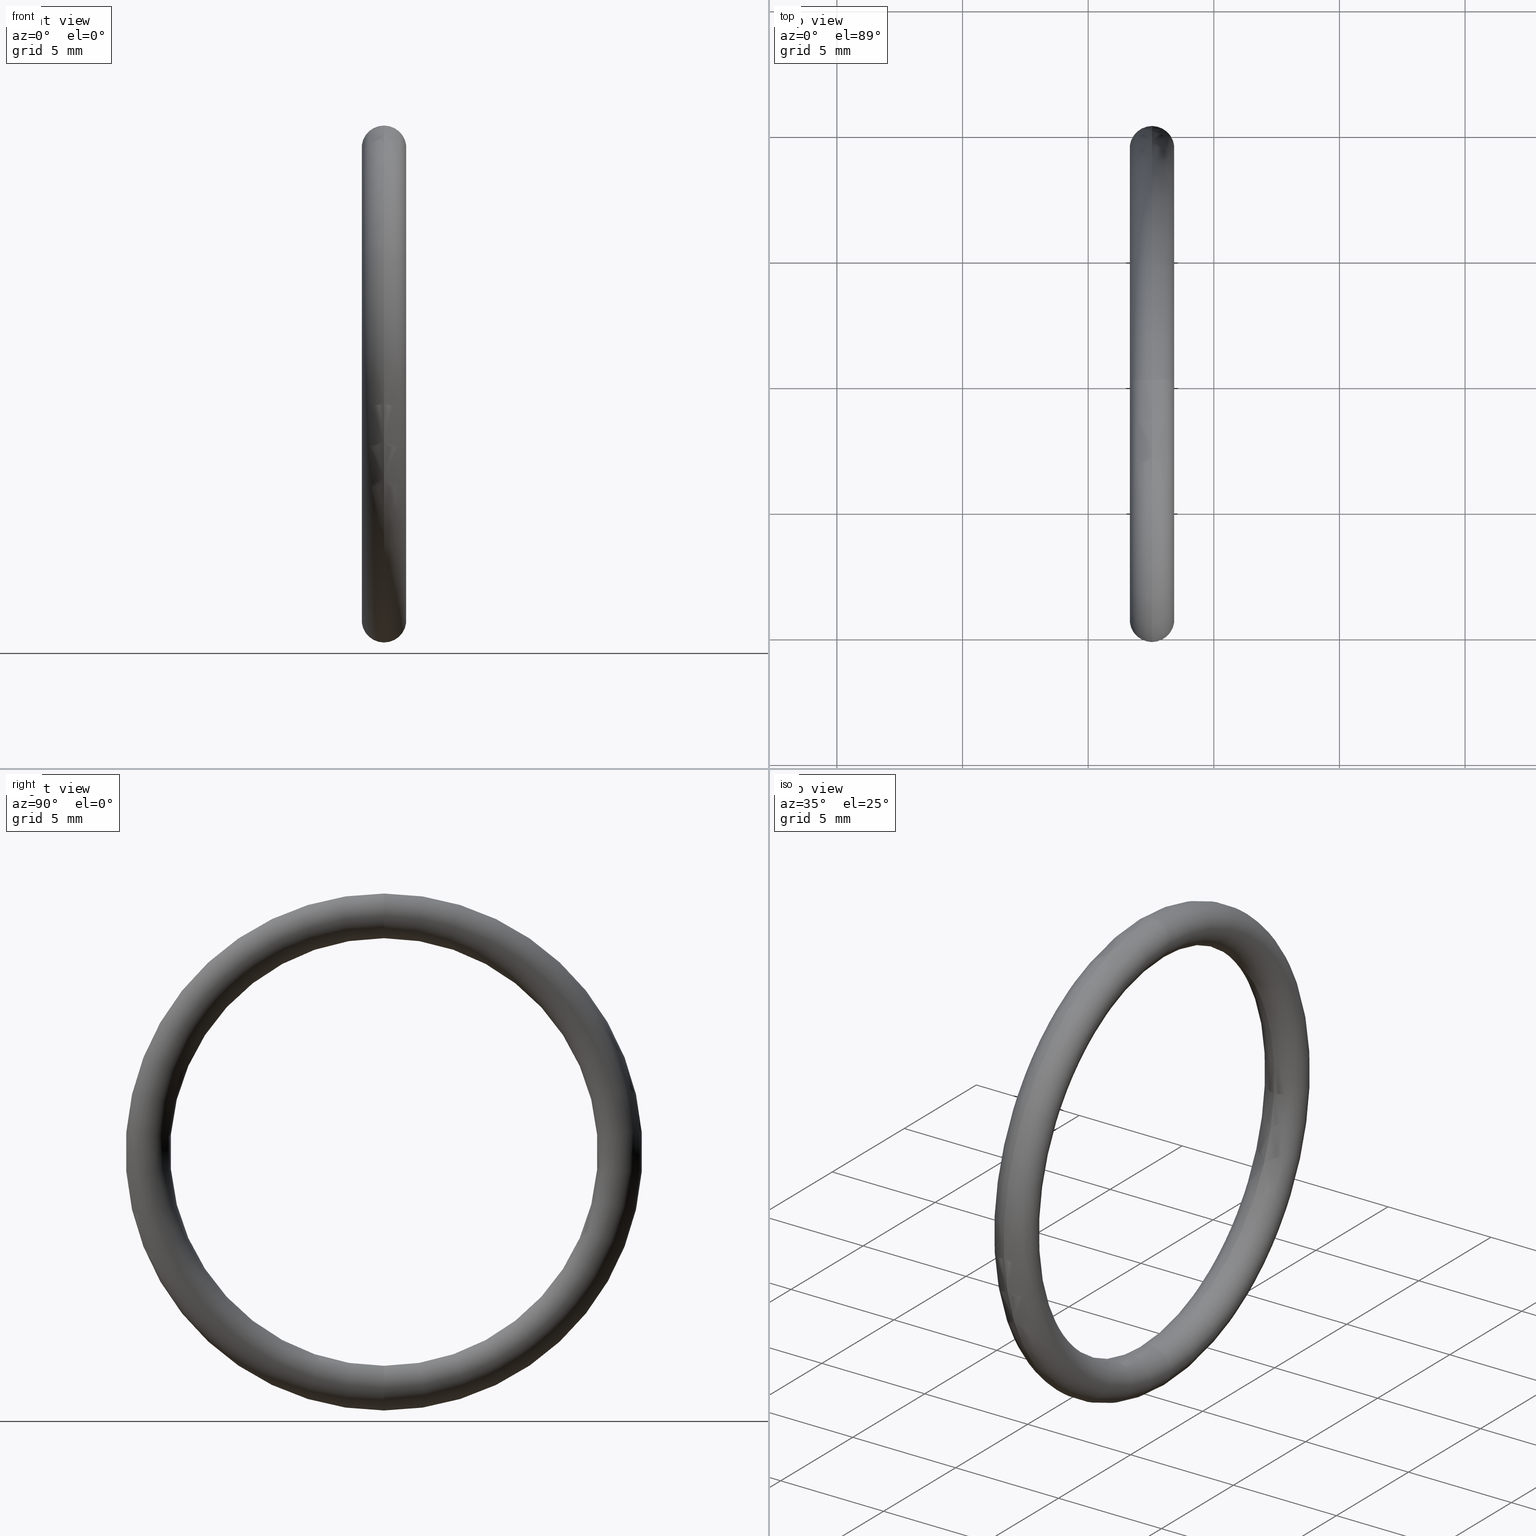
[diagram: canonical four-view strip — front | top / right | iso, engineering-drawing reading convention]
A machine part, canonical four-view strip (front | top / right | iso — engineering-drawing reading convention). The complete STEP part file that produces these views, byte-faithful:
ISO-10303-21;
HEADER;
FILE_DESCRIPTION (( 'STEP AP203' ),
    '1' );
FILE_NAME ('OM-20-VT.STEP',
    '2008-06-24T09:45:37',
    ( 'BSI05' ),
    ( 'BAYSTATE' ),
    'SwSTEP 2.0',
    'SolidWorks 2007',
    '' );
FILE_SCHEMA (( 'CONFIG_CONTROL_DESIGN' ));
ENDSEC;

DATA;
#1 = APPROVAL ( #2, 'UNSPECIFIED' ) ;
#2 = APPROVAL_STATUS ( 'not_yet_approved' ) ;
#3 = PERSON_AND_ORGANIZATION ( #80, #11 ) ;
#4 = PRODUCT_DEFINITION ( 'UNKNOWN', '', #37, #5 ) ;
#5 = DESIGN_CONTEXT ( 'detailed design', #7, 'design' ) ;
#6 = APPLICATION_PROTOCOL_DEFINITION ( 'international standard', 'config_control_design', 1994, #7 ) ;
#7 = APPLICATION_CONTEXT ( 'configuration controlled 3d designs of mechanical parts and assemblies' ) ;
#8 = CC_DESIGN_PERSON_AND_ORGANIZATION_ASSIGNMENT ( #10, #9, ( #81 ) ) ;
#9 = PERSON_AND_ORGANIZATION_ROLE ( 'design_owner' ) ;
#10 = PERSON_AND_ORGANIZATION ( #80, #11 ) ;
#11 = ORGANIZATION ( 'UNSPECIFIED', 'UNSPECIFIED', '' ) ;
#12 = CARTESIAN_POINT ( 'NONE',  ( 0.1000000000000000500, 0.0000000000000000000, 0.0000000000000000000 ) ) ;
#13 = DIRECTION ( 'NONE',  ( 0.0000000000000000000, -1.224646799147352500E-016, 1.000000000000000000 ) ) ;
#14 = DIRECTION ( 'NONE',  ( 0.0000000000000000000, 1.000000000000000000, 1.224646799147353200E-016 ) ) ;
#15 = CARTESIAN_POINT ( 'NONE',  ( 0.1000000000000000500, 4.531193156845207300E-017, -0.3700000000000000000 ) ) ;
#16 = AXIS2_PLACEMENT_3D ( 'NONE', #15, #14, #13 ) ;
#17 = FACE_OUTER_BOUND ( 'NONE', #119, .T. ) ;
#18 = UNCERTAINTY_MEASURE_WITH_UNIT (LENGTH_MEASURE( 1.000000000000000100E-005 ), #127, 'distance_accuracy_value', 'NONE');
#19 =( NAMED_UNIT ( * ) SI_UNIT ( $, .STERADIAN. ) SOLID_ANGLE_UNIT ( ) );
#20 = CC_DESIGN_PERSON_AND_ORGANIZATION_ASSIGNMENT ( #22, #21, ( #37 ) ) ;
#21 = PERSON_AND_ORGANIZATION_ROLE ( 'design_supplier' ) ;
#22 = PERSON_AND_ORGANIZATION ( #80, #11 ) ;
#23 = CC_DESIGN_PERSON_AND_ORGANIZATION_ASSIGNMENT ( #25, #24, ( #37 ) ) ;
#24 = PERSON_AND_ORGANIZATION_ROLE ( 'creator' ) ;
#25 = PERSON_AND_ORGANIZATION ( #80, #11 ) ;
#26 = CC_DESIGN_APPROVAL ( #34, ( #37 ) ) ;
#27 = APPROVAL_DATE_TIME ( #28, #34 ) ;
#28 = DATE_AND_TIME ( #29, #30 ) ;
#29 = CALENDAR_DATE ( 2008, 24, 6 ) ;
#30 = LOCAL_TIME ( 15, 15, 37.00000000000000000, #31 ) ;
#31 = COORDINATED_UNIVERSAL_TIME_OFFSET ( 5, 30, .AHEAD. ) ;
#32 = APPROVAL_PERSON_ORGANIZATION ( #36, #34, #33 ) ;
#33 = APPROVAL_ROLE ( '' ) ;
#34 = APPROVAL ( #35, 'UNSPECIFIED' ) ;
#35 = APPROVAL_STATUS ( 'not_yet_approved' ) ;
#36 = PERSON_AND_ORGANIZATION ( #80, #11 ) ;
#37 = PRODUCT_DEFINITION_FORMATION_WITH_SPECIFIED_SOURCE ( 'ANY', '', #81, .NOT_KNOWN. ) ;
#38 = CC_DESIGN_DATE_AND_TIME_ASSIGNMENT ( #40, #39, ( #4 ) ) ;
#39 = DATE_TIME_ROLE ( 'creation_date' ) ;
#40 = DATE_AND_TIME ( #41, #42 ) ;
#41 = CALENDAR_DATE ( 2008, 24, 6 ) ;
#42 = LOCAL_TIME ( 15, 15, 37.00000000000000000, #43 ) ;
#43 = COORDINATED_UNIVERSAL_TIME_OFFSET ( 5, 30, .AHEAD. ) ;
#44 = CC_DESIGN_PERSON_AND_ORGANIZATION_ASSIGNMENT ( #46, #45, ( #4 ) ) ;
#45 = PERSON_AND_ORGANIZATION_ROLE ( 'creator' ) ;
#46 = PERSON_AND_ORGANIZATION ( #80, #11 ) ;
#47 = CC_DESIGN_APPROVAL ( #1, ( #4 ) ) ;
#48 = APPROVAL_DATE_TIME ( #49, #1 ) ;
#49 = DATE_AND_TIME ( #50, #51 ) ;
#50 = CALENDAR_DATE ( 2008, 24, 6 ) ;
#51 = LOCAL_TIME ( 15, 15, 37.00000000000000000, #52 ) ;
#52 = COORDINATED_UNIVERSAL_TIME_OFFSET ( 5, 30, .AHEAD. ) ;
#53 = APPROVAL_PERSON_ORGANIZATION ( #3, #1, #54 ) ;
#54 = APPROVAL_ROLE ( '' ) ;
#55 = DIRECTION ( 'NONE',  ( 0.0000000000000000000, -1.224646799147352500E-016, 1.000000000000000000 ) ) ;
#56 = DIRECTION ( 'NONE',  ( 0.0000000000000000000, 1.000000000000000000, 1.224646799147353200E-016 ) ) ;
#57 = CARTESIAN_POINT ( 'NONE',  ( 0.1000000000000000500, 4.531193156845207300E-017, -0.3700000000000000000 ) ) ;
#58 = AXIS2_PLACEMENT_3D ( 'NONE', #57, #56, #55 ) ;
#59 = CIRCLE ( 'NONE', #58, 0.03500000000000003800 ) ;
#60 = CARTESIAN_POINT ( 'NONE',  ( 0.1000000000000000500, 0.0000000000000000000, 0.4050000000000000300 ) ) ;
#61 = DIRECTION ( 'NONE',  ( 0.0000000000000000000, 0.0000000000000000000, 1.000000000000000000 ) ) ;
#62 = DIRECTION ( 'NONE',  ( -1.000000000000000000, 0.0000000000000000000, 0.0000000000000000000 ) ) ;
#63 = CARTESIAN_POINT ( 'NONE',  ( 0.1000000000000000500, 0.0000000000000000000, 0.0000000000000000000 ) ) ;
#64 = CARTESIAN_POINT ( 'NONE',  ( 0.1000000000000000500, 0.0000000000000000000, 0.0000000000000000000 ) ) ;
#65 = AXIS2_PLACEMENT_3D ( 'NONE', #64, #78, #77 ) ;
#66 = CIRCLE ( 'NONE', #65, 0.4050000000000000300 ) ;
#67 = FACE_OUTER_BOUND ( 'NONE', #121, .T. ) ;
#68 = DIRECTION ( 'NONE',  ( 0.0000000000000000000, 0.0000000000000000000, -1.000000000000000000 ) ) ;
#69 = DIRECTION ( 'NONE',  ( 0.0000000000000000000, -1.000000000000000000, 0.0000000000000000000 ) ) ;
#70 = AXIS2_PLACEMENT_3D ( 'NONE', #145, #69, #68 ) ;
#71 = CIRCLE ( 'NONE', #70, 0.03500000000000003800 ) ;
#72 = CIRCLE ( 'NONE', #16, 0.03500000000000003800 ) ;
#73 = DIRECTION ( 'NONE',  ( 0.0000000000000000000, 0.0000000000000000000, 1.000000000000000000 ) ) ;
#74 = TOROIDAL_SURFACE ( 'NONE', #100, 0.3700000000000000000, 0.03500000000000000300 ) ;
#75 = FACE_OUTER_BOUND ( 'NONE', #85, .T. ) ;
#76 = CARTESIAN_POINT ( 'NONE',  ( 0.1000000000000000500, 0.0000000000000000000, 0.0000000000000000000 ) ) ;
#77 = DIRECTION ( 'NONE',  ( 0.0000000000000000000, 0.0000000000000000000, 1.000000000000000000 ) ) ;
#78 = DIRECTION ( 'NONE',  ( -1.000000000000000000, 0.0000000000000000000, 0.0000000000000000000 ) ) ;
#79 = CLOSED_SHELL ( 'NONE', ( #118, #178, #150, #131 ) ) ;
#80 = PERSON ( 'UNSPECIFIED', 'UNSPECIFIED', 'UNSPECIFIED', ('UNSPECIFIED'), ('UNSPECIFIED'), ('UNSPECIFIED') ) ;
#81 = PRODUCT ( 'OM-20-VT', 'OM-20-VT', '', ( #82 ) ) ;
#82 = MECHANICAL_CONTEXT ( 'NONE', #84, 'mechanical' ) ;
#83 = APPLICATION_PROTOCOL_DEFINITION ( 'international standard', 'config_control_design', 1994, #84 ) ;
#84 = APPLICATION_CONTEXT ( 'configuration controlled 3d designs of mechanical parts and assemblies' ) ;
#85 = EDGE_LOOP ( 'NONE', ( #151, #155, #182, #157 ) ) ;
#86 = ORIENTED_EDGE ( 'NONE', *, *, #122, .T. ) ;
#87 = DIRECTION ( 'NONE',  ( 0.0000000000000000000, 0.0000000000000000000, 1.000000000000000000 ) ) ;
#88 = DIRECTION ( 'NONE',  ( -1.000000000000000000, 0.0000000000000000000, 0.0000000000000000000 ) ) ;
#89 = AXIS2_PLACEMENT_3D ( 'NONE', #188, #88, #87 ) ;
#90 = TOROIDAL_SURFACE ( 'NONE', #89, 0.3700000000000000000, 0.03500000000000000300 ) ;
#91 = CARTESIAN_POINT ( 'NONE',  ( 0.1000000000000000500, 0.0000000000000000000, 0.3349999999999999600 ) ) ;
#92 = CARTESIAN_POINT ( 'NONE',  ( 0.1000000000000000500, 4.102566777143633400E-017, -0.3349999999999999600 ) ) ;
#93 = CARTESIAN_POINT ( 'NONE',  ( 0.1000000000000000500, 4.959819536546780600E-017, -0.4050000000000000300 ) ) ;
#94 = VERTEX_POINT ( 'NONE', #93 ) ;
#95 = VERTEX_POINT ( 'NONE', #92 ) ;
#96 = EDGE_CURVE ( 'NONE', #181, #120, #132, .T. ) ;
#97 = TOROIDAL_SURFACE ( 'NONE', #149, 0.3700000000000000000, 0.03500000000000000300 ) ;
#98 = DIRECTION ( 'NONE',  ( 0.0000000000000000000, 0.0000000000000000000, 1.000000000000000000 ) ) ;
#99 = DIRECTION ( 'NONE',  ( -1.000000000000000000, 0.0000000000000000000, 0.0000000000000000000 ) ) ;
#100 = AXIS2_PLACEMENT_3D ( 'NONE', #76, #99, #98 ) ;
#101 = PRODUCT_DEFINITION_SHAPE ( 'NONE', 'NONE',  #4 ) ;
#102 = PRODUCT_RELATED_PRODUCT_CATEGORY ( 'detail', '', ( #81 ) ) ;
#103 = CC_DESIGN_SECURITY_CLASSIFICATION ( #173, ( #37 ) ) ;
#104 = CC_DESIGN_APPROVAL ( #161, ( #173 ) ) ;
#105 = APPROVAL_DATE_TIME ( #106, #161 ) ;
#106 = DATE_AND_TIME ( #107, #108 ) ;
#107 = CALENDAR_DATE ( 2008, 24, 6 ) ;
#108 = LOCAL_TIME ( 15, 15, 37.00000000000000000, #109 ) ;
#109 = COORDINATED_UNIVERSAL_TIME_OFFSET ( 5, 30, .AHEAD. ) ;
#110 = DIRECTION ( 'NONE',  ( 0.0000000000000000000, 0.0000000000000000000, -1.000000000000000000 ) ) ;
#111 = DIRECTION ( 'NONE',  ( 0.0000000000000000000, -1.000000000000000000, 0.0000000000000000000 ) ) ;
#112 = CARTESIAN_POINT ( 'NONE',  ( 0.1000000000000000500, 0.0000000000000000000, 0.3700000000000000000 ) ) ;
#113 = AXIS2_PLACEMENT_3D ( 'NONE', #112, #111, #110 ) ;
#114 = ORIENTED_EDGE ( 'NONE', *, *, #96, .T. ) ;
#115 = ORIENTED_EDGE ( 'NONE', *, *, #179, .T. ) ;
#116 = EDGE_CURVE ( 'NONE', #120, #95, #193, .T. ) ;
#117 = ORIENTED_EDGE ( 'NONE', *, *, #183, .T. ) ;
#118 = ADVANCED_FACE ( 'NONE', ( #194 ), #90, .T. ) ;
#119 = EDGE_LOOP ( 'NONE', ( #124, #86, #117, #152 ) ) ;
#120 = VERTEX_POINT ( 'NONE', #91 ) ;
#121 = EDGE_LOOP ( 'NONE', ( #133, #134, #195, #196 ) ) ;
#122 = EDGE_CURVE ( 'NONE', #181, #94, #66, .T. ) ;
#123 = ORIENTED_EDGE ( 'NONE', *, *, #153, .F. ) ;
#124 = ORIENTED_EDGE ( 'NONE', *, *, #96, .F. ) ;
#125 = EDGE_LOOP ( 'NONE', ( #180, #115, #114, #123 ) ) ;
#126 =( NAMED_UNIT ( * ) PLANE_ANGLE_UNIT ( ) SI_UNIT ( $, .RADIAN. ) );
#127 =( CONVERSION_BASED_UNIT ( 'INCH', #128 ) LENGTH_UNIT ( ) NAMED_UNIT ( #129 ) );
#128 = LENGTH_MEASURE_WITH_UNIT ( LENGTH_MEASURE( 0.02539999999999999900 ), #130 );
#129 = DIMENSIONAL_EXPONENTS ( 1.000000000000000000, 0.0000000000000000000, 0.0000000000000000000, 0.0000000000000000000, 0.0000000000000000000, 0.0000000000000000000, 0.0000000000000000000 ) ;
#130 =( LENGTH_UNIT ( ) NAMED_UNIT ( * ) SI_UNIT ( $, .METRE. ) );
#131 = ADVANCED_FACE ( 'NONE', ( #67 ), #74, .T. ) ;
#132 = CIRCLE ( 'NONE', #113, 0.03500000000000003800 ) ;
#133 = ORIENTED_EDGE ( 'NONE', *, *, #179, .F. ) ;
#134 = ORIENTED_EDGE ( 'NONE', *, *, #158, .F. ) ;
#135 = AXIS2_PLACEMENT_3D ( 'NONE', #63, #62, #61 ) ;
#136 = CIRCLE ( 'NONE', #135, 0.4050000000000000300 ) ;
#137 = DIRECTION ( 'NONE',  ( 0.0000000000000000000, 0.0000000000000000000, 1.000000000000000000 ) ) ;
#138 = DIRECTION ( 'NONE',  ( -1.000000000000000000, 0.0000000000000000000, 0.0000000000000000000 ) ) ;
#139 = AXIS2_PLACEMENT_3D ( 'NONE', #12, #138, #137 ) ;
#140 = TOROIDAL_SURFACE ( 'NONE', #139, 0.3700000000000000000, 0.03500000000000000300 ) ;
#141 = DIRECTION ( 'NONE',  ( -1.000000000000000000, 0.0000000000000000000, 0.0000000000000000000 ) ) ;
#142 = CARTESIAN_POINT ( 'NONE',  ( 0.1000000000000000500, 0.0000000000000000000, 0.0000000000000000000 ) ) ;
#143 = AXIS2_PLACEMENT_3D ( 'NONE', #142, #141, #73 ) ;
#144 = CIRCLE ( 'NONE', #143, 0.3349999999999999600 ) ;
#145 = CARTESIAN_POINT ( 'NONE',  ( 0.1000000000000000500, 0.0000000000000000000, 0.3700000000000000000 ) ) ;
#146 = DIRECTION ( 'NONE',  ( 0.0000000000000000000, 0.0000000000000000000, 1.000000000000000000 ) ) ;
#147 = DIRECTION ( 'NONE',  ( -1.000000000000000000, 0.0000000000000000000, 0.0000000000000000000 ) ) ;
#148 = CARTESIAN_POINT ( 'NONE',  ( 0.1000000000000000500, 0.0000000000000000000, 0.0000000000000000000 ) ) ;
#149 = AXIS2_PLACEMENT_3D ( 'NONE', #148, #147, #146 ) ;
#150 = ADVANCED_FACE ( 'NONE', ( #75 ), #97, .T. ) ;
#151 = ORIENTED_EDGE ( 'NONE', *, *, #122, .F. ) ;
#152 = ORIENTED_EDGE ( 'NONE', *, *, #116, .F. ) ;
#153 = EDGE_CURVE ( 'NONE', #95, #120, #144, .T. ) ;
#154 = MANIFOLD_SOLID_BREP ( 'NONE', #79 ) ;
#155 = ORIENTED_EDGE ( 'NONE', *, *, #156, .F. ) ;
#156 = EDGE_CURVE ( 'NONE', #120, #181, #71, .T. ) ;
#157 = ORIENTED_EDGE ( 'NONE', *, *, #158, .T. ) ;
#158 = EDGE_CURVE ( 'NONE', #95, #94, #72, .T. ) ;
#159 = APPROVAL_PERSON_ORGANIZATION ( #163, #161, #160 ) ;
#160 = APPROVAL_ROLE ( '' ) ;
#161 = APPROVAL ( #162, 'UNSPECIFIED' ) ;
#162 = APPROVAL_STATUS ( 'not_yet_approved' ) ;
#163 = PERSON_AND_ORGANIZATION ( #80, #11 ) ;
#164 = CC_DESIGN_DATE_AND_TIME_ASSIGNMENT ( #166, #165, ( #173 ) ) ;
#165 = DATE_TIME_ROLE ( 'classification_date' ) ;
#166 = DATE_AND_TIME ( #167, #168 ) ;
#167 = CALENDAR_DATE ( 2008, 24, 6 ) ;
#168 = LOCAL_TIME ( 15, 15, 37.00000000000000000, #169 ) ;
#169 = COORDINATED_UNIVERSAL_TIME_OFFSET ( 5, 30, .AHEAD. ) ;
#170 = CC_DESIGN_PERSON_AND_ORGANIZATION_ASSIGNMENT ( #172, #171, ( #173 ) ) ;
#171 = PERSON_AND_ORGANIZATION_ROLE ( 'classification_officer' ) ;
#172 = PERSON_AND_ORGANIZATION ( #80, #11 ) ;
#173 = SECURITY_CLASSIFICATION ( '', '', #174 ) ;
#174 = SECURITY_CLASSIFICATION_LEVEL ( 'unclassified' ) ;
#175 = SHAPE_DEFINITION_REPRESENTATION ( #101, #176 ) ;
#176 = ADVANCED_BREP_SHAPE_REPRESENTATION ( 'OM-20-VT', ( #154, #187 ), #177 ) ;
#177 =( GEOMETRIC_REPRESENTATION_CONTEXT ( 3 ) GLOBAL_UNCERTAINTY_ASSIGNED_CONTEXT ( ( #18 ) ) GLOBAL_UNIT_ASSIGNED_CONTEXT ( ( #127, #126, #19 ) ) REPRESENTATION_CONTEXT ( 'NONE', 'WORKASPACE' ) );
#178 = ADVANCED_FACE ( 'NONE', ( #17 ), #140, .T. ) ;
#179 = EDGE_CURVE ( 'NONE', #94, #181, #136, .T. ) ;
#180 = ORIENTED_EDGE ( 'NONE', *, *, #183, .F. ) ;
#181 = VERTEX_POINT ( 'NONE', #60 ) ;
#182 = ORIENTED_EDGE ( 'NONE', *, *, #116, .T. ) ;
#183 = EDGE_CURVE ( 'NONE', #94, #95, #59, .T. ) ;
#184 = DIRECTION ( 'NONE',  ( 1.000000000000000000, 0.0000000000000000000, 0.0000000000000000000 ) ) ;
#185 = DIRECTION ( 'NONE',  ( 0.0000000000000000000, 0.0000000000000000000, 1.000000000000000000 ) ) ;
#186 = CARTESIAN_POINT ( 'NONE',  ( 0.0000000000000000000, 0.0000000000000000000, 0.0000000000000000000 ) ) ;
#187 = AXIS2_PLACEMENT_3D ( 'NONE', #186, #185, #184 ) ;
#188 = CARTESIAN_POINT ( 'NONE',  ( 0.1000000000000000500, 0.0000000000000000000, 0.0000000000000000000 ) ) ;
#189 = DIRECTION ( 'NONE',  ( 0.0000000000000000000, 0.0000000000000000000, 1.000000000000000000 ) ) ;
#190 = DIRECTION ( 'NONE',  ( -1.000000000000000000, 0.0000000000000000000, 0.0000000000000000000 ) ) ;
#191 = CARTESIAN_POINT ( 'NONE',  ( 0.1000000000000000500, 0.0000000000000000000, 0.0000000000000000000 ) ) ;
#192 = AXIS2_PLACEMENT_3D ( 'NONE', #191, #190, #189 ) ;
#193 = CIRCLE ( 'NONE', #192, 0.3349999999999999600 ) ;
#194 = FACE_OUTER_BOUND ( 'NONE', #125, .T. ) ;
#195 = ORIENTED_EDGE ( 'NONE', *, *, #153, .T. ) ;
#196 = ORIENTED_EDGE ( 'NONE', *, *, #156, .T. ) ;
ENDSEC;
END-ISO-10303-21;
